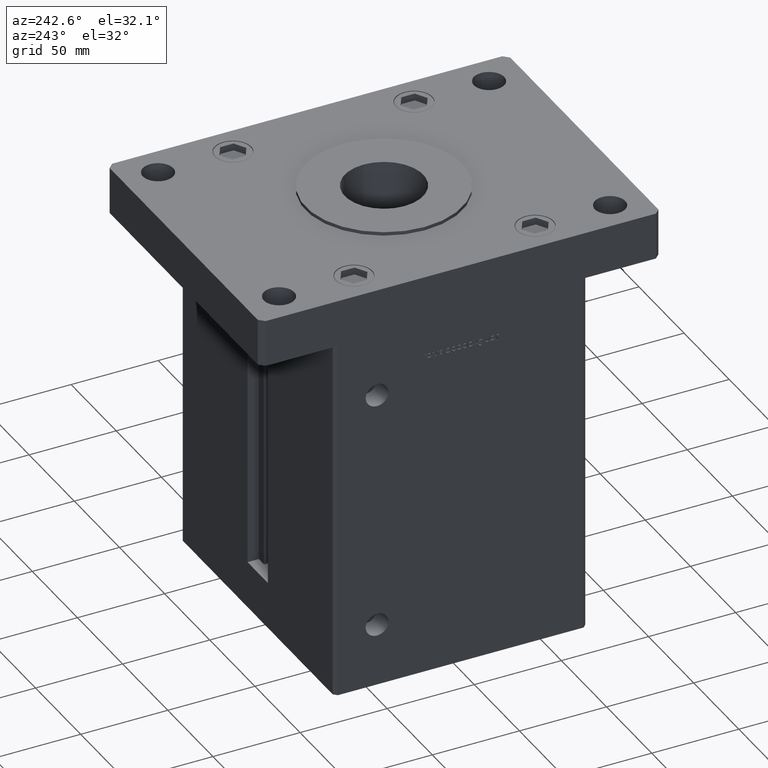
[diagram: clean part render]
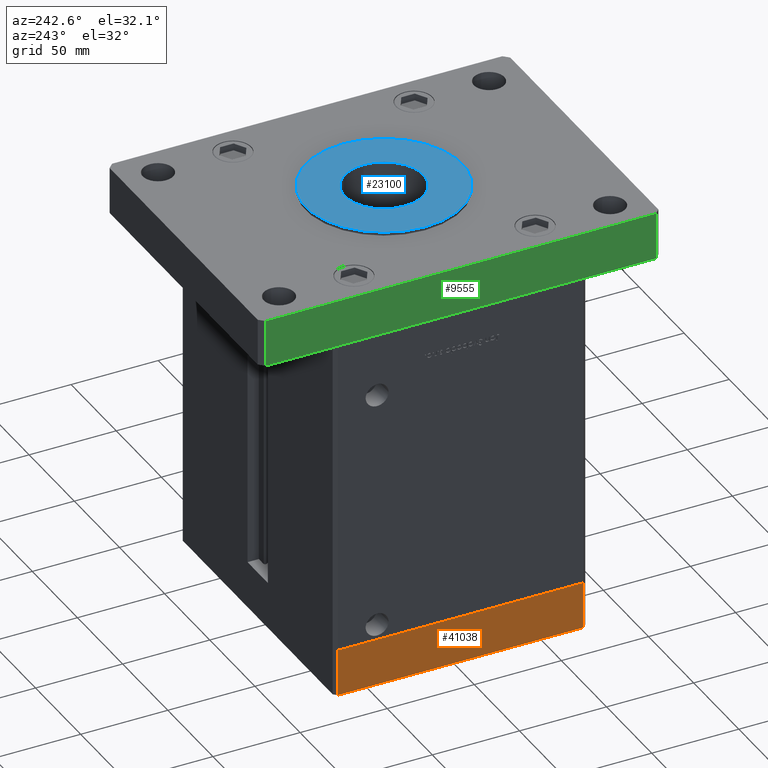
[diagram: same view with three faces highlighted in distinct colors, each labeled with its STEP entity id]
A machine part, auxiliary view with three faces highlighted in distinct colors.
Their STEP definitions:

[orange] entity #41038 — the highlighted planar face has unit normal (-1, 0, 0).
#1618 = DIRECTION ( 'NONE',  ( -5.905441620346577238E-16, 1.000000000000000000, 0.000000000000000000 ) ) ;
#2041 = CARTESIAN_POINT ( 'NONE',  ( 85.00000000000001421, -70.50000000000000000, -27.00000000000000000 ) ) ;
#2146 = AXIS2_PLACEMENT_3D ( 'NONE', #40643, #29238, #15983 ) ;
#2417 = CARTESIAN_POINT ( 'NONE',  ( 85.00000000000001421, -70.50000000000000000, 0.000000000000000000 ) ) ;
#3022 = DIRECTION ( 'NONE',  ( 0.000000000000000000, 0.000000000000000000, 1.000000000000000000 ) ) ;
#3523 = VERTEX_POINT ( 'NONE', #6296 ) ;
#6296 = CARTESIAN_POINT ( 'NONE',  ( 85.00000000000001421, -70.50000000000000000, -27.00000000000000000 ) ) ;
#10508 = ORIENTED_EDGE ( 'NONE', *, *, #48451, .F. ) ;
#11659 = FACE_OUTER_BOUND ( 'NONE', #39242, .T. ) ;
#12064 = VECTOR ( 'NONE', #1618, 1000.000000000000000 ) ;
#12446 = CARTESIAN_POINT ( 'NONE',  ( 84.99999999999994316, 70.50000000000000000, -27.00000000000000000 ) ) ;
#14943 = LINE ( 'NONE', #43918, #30896 ) ;
#15241 = EDGE_CURVE ( 'NONE', #27684, #42901, #22712, .T. ) ;
#15983 = DIRECTION ( 'NONE',  ( -5.905441620346577238E-16, 1.000000000000000000, 0.000000000000000000 ) ) ;
#19897 = CARTESIAN_POINT ( 'NONE',  ( 84.99999999999994316, 70.50000000000000000, 0.000000000000000000 ) ) ;
#20545 = CARTESIAN_POINT ( 'NONE',  ( 85.00000000000001421, -70.50000000000000000, 0.000000000000000000 ) ) ;
#21411 = LINE ( 'NONE', #37683, #25955 ) ;
#22712 = LINE ( 'NONE', #2417, #12064 ) ;
#23711 = EDGE_CURVE ( 'NONE', #3523, #45369, #21411, .T. ) ;
#25955 = VECTOR ( 'NONE', #33882, 1000.000000000000000 ) ;
#26568 = VECTOR ( 'NONE', #35600, 1000.000000000000000 ) ;
#27684 = VERTEX_POINT ( 'NONE', #20545 ) ;
#29238 = DIRECTION ( 'NONE',  ( 1.000000000000000000, 5.905441620346577238E-16, -0.000000000000000000 ) ) ;
#30896 = VECTOR ( 'NONE', #3022, 1000.000000000000000 ) ;
#33779 = LINE ( 'NONE', #2041, #26568 ) ;
#33882 = DIRECTION ( 'NONE',  ( -5.905441620346577238E-16, 1.000000000000000000, 0.000000000000000000 ) ) ;
#35600 = DIRECTION ( 'NONE',  ( 0.000000000000000000, 0.000000000000000000, 1.000000000000000000 ) ) ;
#36847 = PLANE ( 'NONE',  #2146 ) ;
#37683 = CARTESIAN_POINT ( 'NONE',  ( 85.00000000000001421, -70.50000000000000000, -27.00000000000000000 ) ) ;
#39242 = EDGE_LOOP ( 'NONE', ( #45863, #10508, #41224, #45679 ) ) ;
#40643 = CARTESIAN_POINT ( 'NONE',  ( 85.00000000000001421, -70.50000000000000000, -27.00000000000000000 ) ) ;
#41038 = ADVANCED_FACE ( 'NONE', ( #11659 ), #36847, .T. ) ;
#41224 = ORIENTED_EDGE ( 'NONE', *, *, #23711, .T. ) ;
#42901 = VERTEX_POINT ( 'NONE', #19897 ) ;
#43918 = CARTESIAN_POINT ( 'NONE',  ( 84.99999999999994316, 70.50000000000000000, -27.00000000000000000 ) ) ;
#45369 = VERTEX_POINT ( 'NONE', #12446 ) ;
#45679 = ORIENTED_EDGE ( 'NONE', *, *, #48665, .T. ) ;
#45863 = ORIENTED_EDGE ( 'NONE', *, *, #15241, .F. ) ;
#48451 = EDGE_CURVE ( 'NONE', #3523, #27684, #33779, .T. ) ;
#48665 = EDGE_CURVE ( 'NONE', #45369, #42901, #14943, .T. ) ;

[blue] entity #23100 — the highlighted planar face has unit normal (0, 0, 1).
#1385 = PLANE ( 'NONE',  #5203 ) ;
#1664 = CARTESIAN_POINT ( 'NONE',  ( 0.000000000000000000, 0.000000000000000000, 28.99999999999999645 ) ) ;
#2010 = ORIENTED_EDGE ( 'NONE', *, *, #30495, .F. ) ;
#2131 = DIRECTION ( 'NONE',  ( 1.000000000000000000, 0.000000000000000000, 0.000000000000000000 ) ) ;
#2189 = VERTEX_POINT ( 'NONE', #17186 ) ;
#4798 = DIRECTION ( 'NONE',  ( 0.000000000000000000, 0.000000000000000000, 1.000000000000000000 ) ) ;
#5203 = AXIS2_PLACEMENT_3D ( 'NONE', #1664, #34687, #51205 ) ;
#5329 = CARTESIAN_POINT ( 'NONE',  ( 0.000000000000000000, 0.000000000000000000, 28.99999999999999645 ) ) ;
#6473 = CIRCLE ( 'NONE', #37628, 22.50000000000000355 ) ;
#8854 = DIRECTION ( 'NONE',  ( 0.000000000000000000, 0.000000000000000000, 1.000000000000000000 ) ) ;
#9525 = ORIENTED_EDGE ( 'NONE', *, *, #19886, .T. ) ;
#10181 = EDGE_LOOP ( 'NONE', ( #2010, #35805 ) ) ;
#11340 = EDGE_LOOP ( 'NONE', ( #9525, #47793 ) ) ;
#12554 = CARTESIAN_POINT ( 'NONE',  ( -22.50000000000000355, 2.755455298081545172E-15, 28.99999999999999645 ) ) ;
#14305 = CARTESIAN_POINT ( 'NONE',  ( 0.000000000000000000, 0.000000000000000000, 28.99999999999999645 ) ) ;
#16886 = EDGE_CURVE ( 'NONE', #18538, #2189, #31134, .T. ) ;
#17186 = CARTESIAN_POINT ( 'NONE',  ( -45.00000000000000711, 0.000000000000000000, 28.99999999999999645 ) ) ;
#18538 = VERTEX_POINT ( 'NONE', #49533 ) ;
#18831 = EDGE_CURVE ( 'NONE', #22597, #36183, #6473, .T. ) ;
#19886 = EDGE_CURVE ( 'NONE', #2189, #18538, #29272, .T. ) ;
#21034 = CARTESIAN_POINT ( 'NONE',  ( 0.000000000000000000, 0.000000000000000000, 28.99999999999999645 ) ) ;
#22165 = CARTESIAN_POINT ( 'NONE',  ( 0.000000000000000000, 0.000000000000000000, 28.99999999999999645 ) ) ;
#22597 = VERTEX_POINT ( 'NONE', #12554 ) ;
#23100 = ADVANCED_FACE ( 'NONE', ( #38758, #30610 ), #1385, .T. ) ;
#27564 = AXIS2_PLACEMENT_3D ( 'NONE', #5329, #8854, #30225 ) ;
#29163 = DIRECTION ( 'NONE',  ( 1.000000000000000000, 0.000000000000000000, 0.000000000000000000 ) ) ;
#29272 = CIRCLE ( 'NONE', #27564, 45.00000000000000711 ) ;
#29756 = DIRECTION ( 'NONE',  ( 0.000000000000000000, 0.000000000000000000, 1.000000000000000000 ) ) ;
#30225 = DIRECTION ( 'NONE',  ( 1.000000000000000000, 0.000000000000000000, 0.000000000000000000 ) ) ;
#30495 = EDGE_CURVE ( 'NONE', #36183, #22597, #38261, .T. ) ;
#30610 = FACE_OUTER_BOUND ( 'NONE', #11340, .T. ) ;
#31134 = CIRCLE ( 'NONE', #32861, 45.00000000000000711 ) ;
#32861 = AXIS2_PLACEMENT_3D ( 'NONE', #21034, #4798, #29163 ) ;
#34687 = DIRECTION ( 'NONE',  ( 0.000000000000000000, 0.000000000000000000, 1.000000000000000000 ) ) ;
#35805 = ORIENTED_EDGE ( 'NONE', *, *, #18831, .F. ) ;
#36183 = VERTEX_POINT ( 'NONE', #42263 ) ;
#37628 = AXIS2_PLACEMENT_3D ( 'NONE', #14305, #39232, #2131 ) ;
#38261 = CIRCLE ( 'NONE', #52983, 22.50000000000000355 ) ;
#38758 = FACE_BOUND ( 'NONE', #10181, .T. ) ;
#39232 = DIRECTION ( 'NONE',  ( 0.000000000000000000, 0.000000000000000000, 1.000000000000000000 ) ) ;
#42224 = DIRECTION ( 'NONE',  ( 1.000000000000000000, 0.000000000000000000, 0.000000000000000000 ) ) ;
#42263 = CARTESIAN_POINT ( 'NONE',  ( 22.50000000000000355, 0.000000000000000000, 28.99999999999999645 ) ) ;
#47793 = ORIENTED_EDGE ( 'NONE', *, *, #16886, .T. ) ;
#49533 = CARTESIAN_POINT ( 'NONE',  ( 45.00000000000000711, 5.510910596163090344E-15, 28.99999999999999645 ) ) ;
#51205 = DIRECTION ( 'NONE',  ( 1.000000000000000000, 0.000000000000000000, -0.000000000000000000 ) ) ;
#52983 = AXIS2_PLACEMENT_3D ( 'NONE', #22165, #29756, #42224 ) ;

[green] entity #9555 — the highlighted planar face has unit normal (1, 0, 0).
#5345 = ORIENTED_EDGE ( 'NONE', *, *, #38700, .T. ) ;
#5976 = VECTOR ( 'NONE', #9676, 1000.000000000000000 ) ;
#7112 = ORIENTED_EDGE ( 'NONE', *, *, #31180, .T. ) ;
#7779 = PLANE ( 'NONE',  #34345 ) ;
#9374 = VERTEX_POINT ( 'NONE', #33827 ) ;
#9555 = ADVANCED_FACE ( 'NONE', ( #28349 ), #7779, .F. ) ;
#9676 = DIRECTION ( 'NONE',  ( -0.000000000000000000, -0.000000000000000000, -1.000000000000000000 ) ) ;
#12925 = CARTESIAN_POINT ( 'NONE',  ( -84.99999999999998579, -112.0000000000000142, 27.00000000000000000 ) ) ;
#13630 = EDGE_CURVE ( 'NONE', #9374, #40683, #42172, .T. ) ;
#14236 = EDGE_CURVE ( 'NONE', #26421, #9374, #50373, .T. ) ;
#15634 = DIRECTION ( 'NONE',  ( 1.000000000000000000, 1.239088197126290570E-16, -0.000000000000000000 ) ) ;
#16540 = DIRECTION ( 'NONE',  ( -0.000000000000000000, -0.000000000000000000, -1.000000000000000000 ) ) ;
#20649 = CARTESIAN_POINT ( 'NONE',  ( -84.99999999999998579, -112.0000000000000142, 0.000000000000000000 ) ) ;
#20861 = DIRECTION ( 'NONE',  ( 1.239088197126290570E-16, -1.000000000000000000, 0.000000000000000000 ) ) ;
#20989 = VECTOR ( 'NONE', #20861, 1000.000000000000000 ) ;
#21104 = DIRECTION ( 'NONE',  ( 1.239088197126290570E-16, -1.000000000000000000, 0.000000000000000000 ) ) ;
#25449 = CARTESIAN_POINT ( 'NONE',  ( -85.00000000000001421, 112.0000000000000000, 27.00000000000000000 ) ) ;
#26263 = EDGE_LOOP ( 'NONE', ( #7112, #29538, #29124, #5345 ) ) ;
#26421 = VERTEX_POINT ( 'NONE', #44521 ) ;
#28349 = FACE_OUTER_BOUND ( 'NONE', #26263, .T. ) ;
#29124 = ORIENTED_EDGE ( 'NONE', *, *, #14236, .F. ) ;
#29538 = ORIENTED_EDGE ( 'NONE', *, *, #13630, .F. ) ;
#31180 = EDGE_CURVE ( 'NONE', #31479, #40683, #41451, .T. ) ;
#31479 = VERTEX_POINT ( 'NONE', #36198 ) ;
#32155 = DIRECTION ( 'NONE',  ( -1.239088197126290570E-16, 1.000000000000000000, 0.000000000000000000 ) ) ;
#33827 = CARTESIAN_POINT ( 'NONE',  ( -84.99999999999998579, -112.0000000000000142, 27.00000000000000000 ) ) ;
#34345 = AXIS2_PLACEMENT_3D ( 'NONE', #52741, #15634, #32155 ) ;
#36198 = CARTESIAN_POINT ( 'NONE',  ( -85.00000000000001421, 112.0000000000000000, 0.000000000000000000 ) ) ;
#37091 = VECTOR ( 'NONE', #21104, 1000.000000000000000 ) ;
#38372 = VECTOR ( 'NONE', #16540, 1000.000000000000000 ) ;
#38700 = EDGE_CURVE ( 'NONE', #26421, #31479, #41182, .T. ) ;
#40683 = VERTEX_POINT ( 'NONE', #20649 ) ;
#41182 = LINE ( 'NONE', #45515, #38372 ) ;
#41451 = LINE ( 'NONE', #49041, #20989 ) ;
#42172 = LINE ( 'NONE', #12925, #5976 ) ;
#44521 = CARTESIAN_POINT ( 'NONE',  ( -85.00000000000001421, 112.0000000000000000, 27.00000000000000000 ) ) ;
#45515 = CARTESIAN_POINT ( 'NONE',  ( -85.00000000000001421, 112.0000000000000000, 27.00000000000000000 ) ) ;
#49041 = CARTESIAN_POINT ( 'NONE',  ( -85.00000000000001421, 112.0000000000000000, 0.000000000000000000 ) ) ;
#50373 = LINE ( 'NONE', #25449, #37091 ) ;
#52741 = CARTESIAN_POINT ( 'NONE',  ( -85.00000000000001421, 112.0000000000000000, 27.00000000000000000 ) ) ;